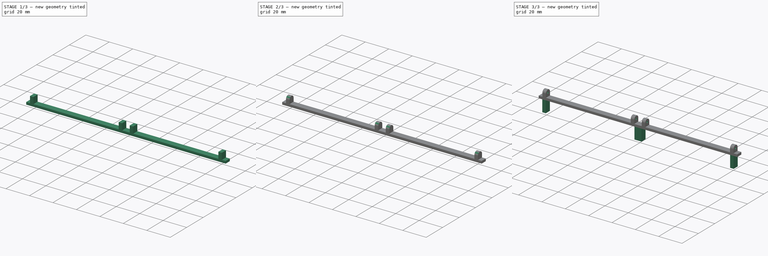
[diagram: build sequence overview — one tinted view per stage of 3, left to right]
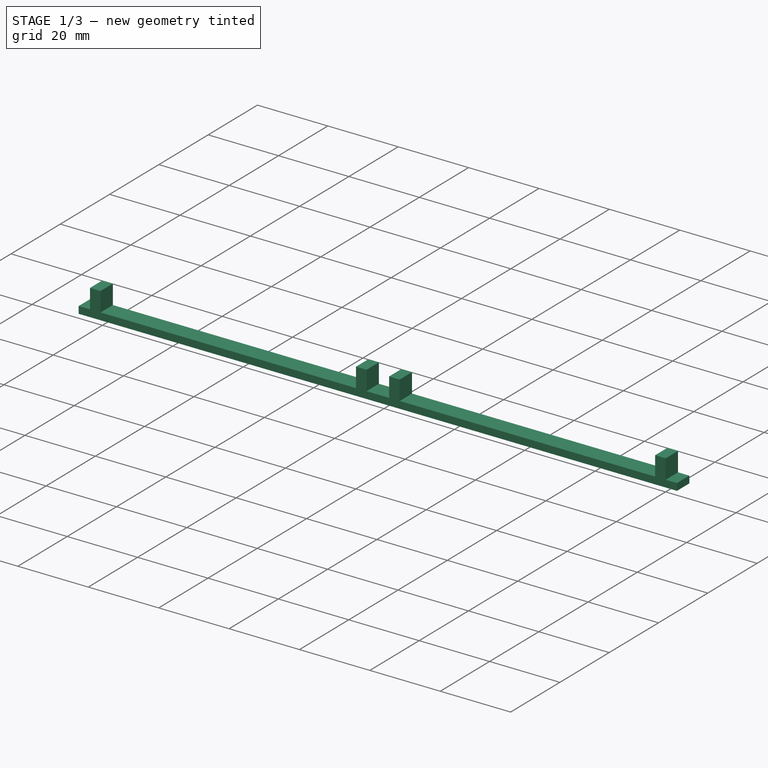
[diagram: stage 1 of 3 — iso view after this stage's code; geometry added in this stage tinted green]
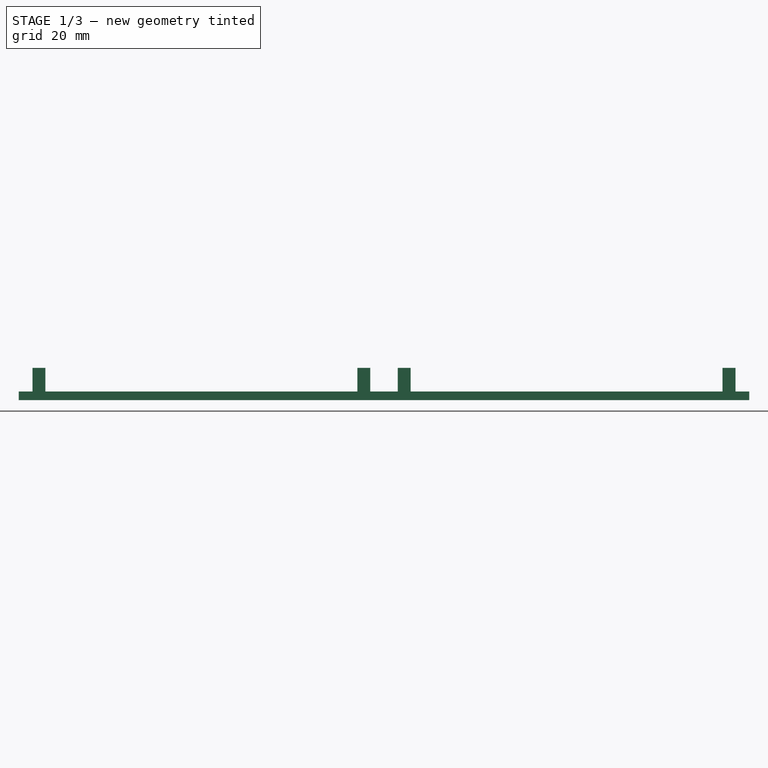
[diagram: stage 1 of 3 — front view after this stage's code; geometry added in this stage tinted green]
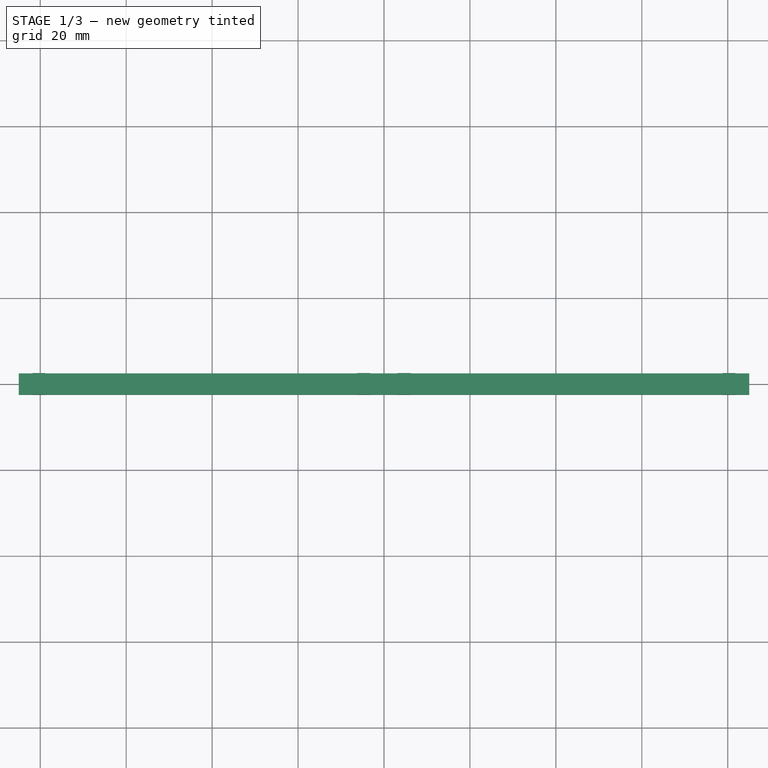
[diagram: stage 1 of 3 — top view after this stage's code; geometry added in this stage tinted green]
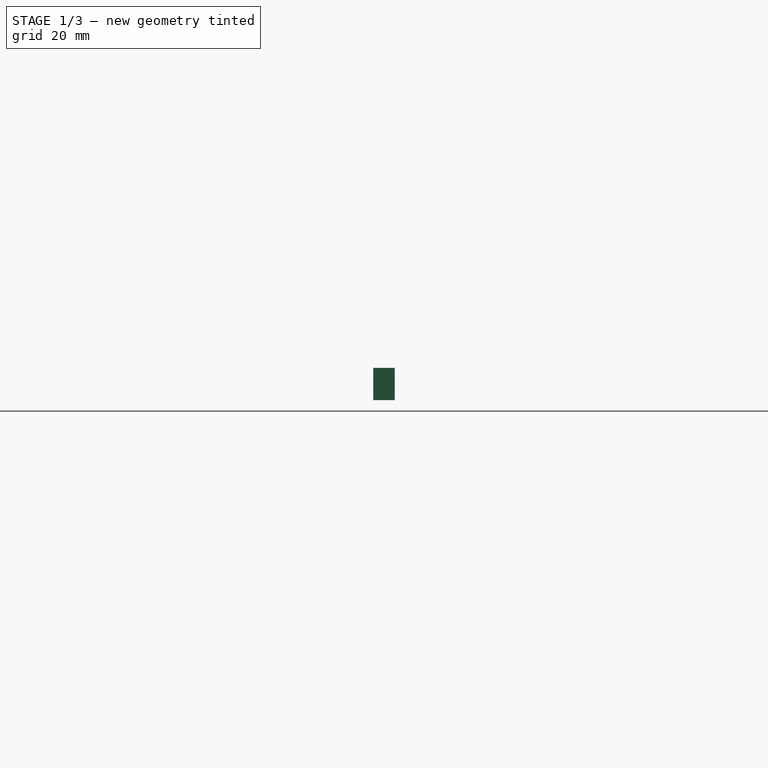
[diagram: stage 1 of 3 — right view after this stage's code; geometry added in this stage tinted green]
FCSTD DOCUMENT  (FreeCAD 0.19R)
Label: attach_aileron_part
License: All rights reserved
LicenseURL: http://en.wikipedia.org/wiki/All_rights_reserved
objects: Sketcher::SketchObject×4, PartDesign::Pad×3, App::DocumentObjectGroup×2, PartDesign::CoordinateSystem×2, App::FeaturePython×1, PartDesign::Fillet×1, PartDesign::Pocket×1, PartDesign::Body×1, App::Part×1
note: 17 computed .brp shape members not serialized (recipe doc carries the construction recipe); baked Part::Feature solids carry a one-line shape summary decoded from their .brp

FEATURE [App::DocumentObjectGroup] Parts
FEATURE [PartDesign::CoordinateSystem] LCS_Origin
  AttacherType = Attacher::AttachEngine3D
  MapMode = 2
  Support = -> [X_Axis]
FEATURE [App::DocumentObjectGroup] Constraints
FEATURE [App::FeaturePython] Variables  # WARN: FeaturePython — macro-defined, semantics opaque (R4)
FEATURE [Sketcher::SketchObject] Sketch
  FullyConstrained = true
  MapMode = 5
  Support = -> [XY_Plane001]
  sketch-geometry (4):
    g0: LineSegment StartX=-85 StartY=2.5 StartZ=0 EndX=85 EndY=2.5 EndZ=0
    g1: LineSegment StartX=85 StartY=2.5 StartZ=0 EndX=85 EndY=-2.5 EndZ=0
    g2: LineSegment StartX=85 StartY=-2.5 StartZ=0 EndX=-85 EndY=-2.5 EndZ=0
    g3: LineSegment StartX=-85 StartY=-2.5 StartZ=0 EndX=-85 EndY=2.5 EndZ=0
  constraints (10):
    c: Coincident(g0,g1)
    c: Coincident(g1,g2)
    c: Coincident(g2,g3)
    c: Coincident(g3,g0)
    c: Horizontal(g2)
    c: Vertical(g3)
    c: DistanceX(g0,g0) = 170
    c: DistanceY(g3,g3) = 5
    c: Symmetric(g0,g0,g-2)
    c: Symmetric(g0,g1,g-1)
FEATURE [PartDesign::Pad] Pad
  Direction = (1,1,1)
  Length = 2
  Length2 = 100
  Profile = -> Sketch
  Type = 0
FEATURE [Sketcher::SketchObject] Sketch001
  FullyConstrained = true
  MapMode = 5
  Placement = pos=(0,0,2) rot=(0,0,1;0rad)
  Support = -> [Pad]
  sketch-geometry (16):
    g0: LineSegment StartX=-81.8 StartY=2.5 StartZ=0 EndX=-78.8 EndY=2.5 EndZ=0
    g1: LineSegment StartX=-78.8 StartY=2.5 StartZ=0 EndX=-78.8 EndY=-2.5 EndZ=0
    g2: LineSegment StartX=-78.8 StartY=-2.5 StartZ=0 EndX=-81.8 EndY=-2.5 EndZ=0
    g3: LineSegment StartX=-81.8 StartY=-2.5 StartZ=0 EndX=-81.8 EndY=2.5 EndZ=0
    g4: LineSegment StartX=78.8 StartY=2.5 StartZ=0 EndX=81.8 EndY=2.5 EndZ=0
    g5: LineSegment StartX=81.8 StartY=2.5 StartZ=0 EndX=81.8 EndY=-2.5 EndZ=0
    g6: LineSegment StartX=81.8 StartY=-2.5 StartZ=0 EndX=78.8 EndY=-2.5 EndZ=0
    g7: LineSegment StartX=78.8 StartY=-2.5 StartZ=0 EndX=78.8 EndY=2.5 EndZ=0
    g8: LineSegment StartX=-6.2 StartY=2.5 StartZ=0 EndX=-3.2 EndY=2.5 EndZ=0
    g9: LineSegment StartX=-3.2 StartY=2.5 StartZ=0 EndX=-3.2 EndY=-2.5 EndZ=0
    g10: LineSegment StartX=-3.2 StartY=-2.5 StartZ=0 EndX=-6.2 EndY=-2.5 EndZ=0
    g11: LineSegment StartX=-6.2 StartY=-2.5 StartZ=0 EndX=-6.2 EndY=2.5 EndZ=0
    g12: LineSegment StartX=3.2 StartY=2.5 StartZ=0 EndX=6.2 EndY=2.5 EndZ=0
    g13: LineSegment StartX=6.2 StartY=2.5 StartZ=0 EndX=6.2 EndY=-2.5 EndZ=0
    g14: LineSegment StartX=6.2 StartY=-2.5 StartZ=0 EndX=3.2 EndY=-2.5 EndZ=0
    g15: LineSegment StartX=3.2 StartY=-2.5 StartZ=0 EndX=3.2 EndY=2.5 EndZ=0
  constraints (44):
    c: Coincident(g0,g1)
    c: Coincident(g1,g2)
    c: Coincident(g2,g3)
    c: Coincident(g3,g0)
    c: Horizontal(g0)
    c: Horizontal(g2)
    c: Vertical(g3)
    c: DistanceY(g3,g3) = 5
    c: DistanceX(g2,g2) = 3
    c: Symmetric(g1,g0,g-1)
    c: DistanceX(g-2,g0) = -81.8
    c: Coincident(g4,g5)
    c: Coincident(g5,g6)
    c: Coincident(g6,g7)
    c: Coincident(g7,g4)
    c: Horizontal(g4)
    c: Horizontal(g6)
    c: Vertical(g5)
    c: DistanceY(g7,g7) = 5
    c: DistanceX(g6,g6) = 3
    c: Symmetric(g6,g4,g-1)
    c: DistanceX(g-2,g4) = 81.8
    c: Coincident(g8,g9)
    c: Coincident(g9,g10)
    c: Coincident(g10,g11)
    c: Coincident(g11,g8)
    c: Horizontal(g8)
    c: Horizontal(g10)
    c: Vertical(g11)
    c: DistanceY(g11,g11) = 5
    c: DistanceX(g10,g10) = 3
    c: Symmetric(g9,g8,g-1)
    c: DistanceX(g-2,g8) = -3.2
    c: Coincident(g12,g13)
    c: Coincident(g13,g14)
    c: Coincident(g14,g15)
    c: Coincident(g15,g12)
    c: Horizontal(g12)
    c: Horizontal(g14)
    c: Vertical(g15)
    c: DistanceY(g15,g15) = 5
    c: DistanceX(g14,g14) = 3
    c: Symmetric(g13,g12,g-1)
    c: DistanceX(g-2,g12) = 3.2
FEATURE [PartDesign::Pad] Pad001
  BaseFeature = -> Pad
  Direction = (1,1,1)
  Length = 5.5
  Length2 = 100
  Profile = -> Sketch001
  Type = 0
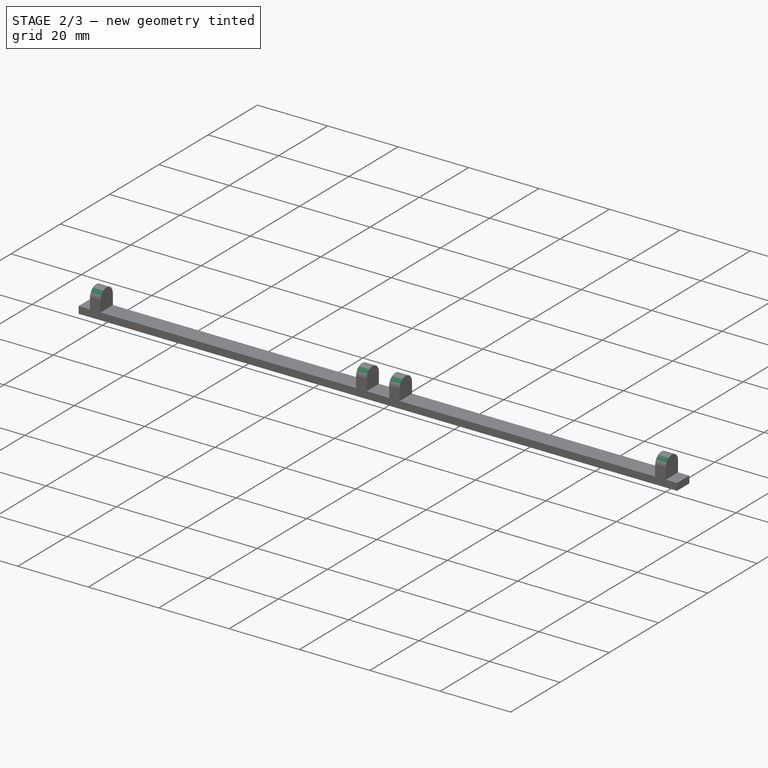
[diagram: stage 2 of 3 — iso view after this stage's code; geometry added in this stage tinted green]
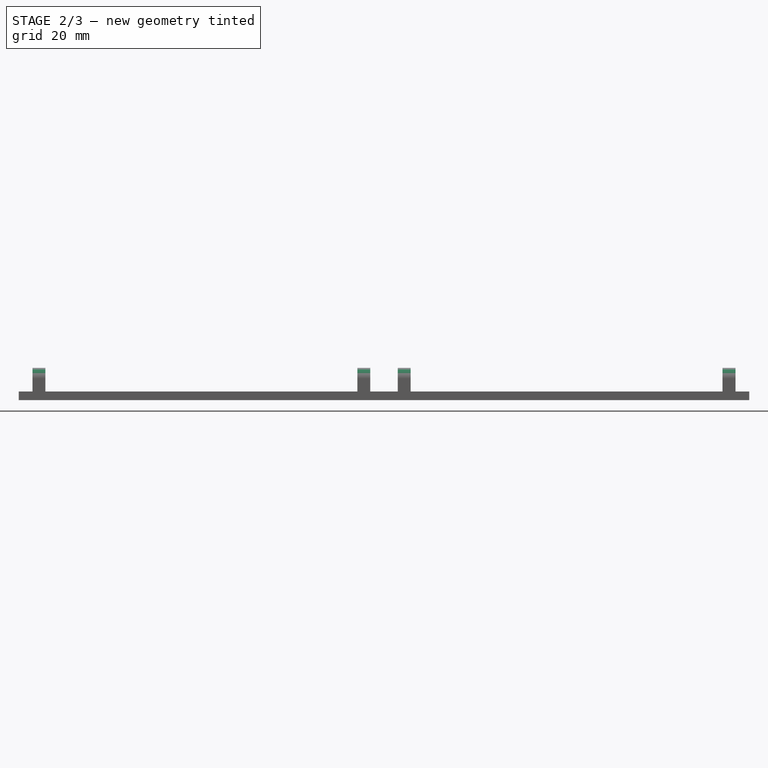
[diagram: stage 2 of 3 — front view after this stage's code; geometry added in this stage tinted green]
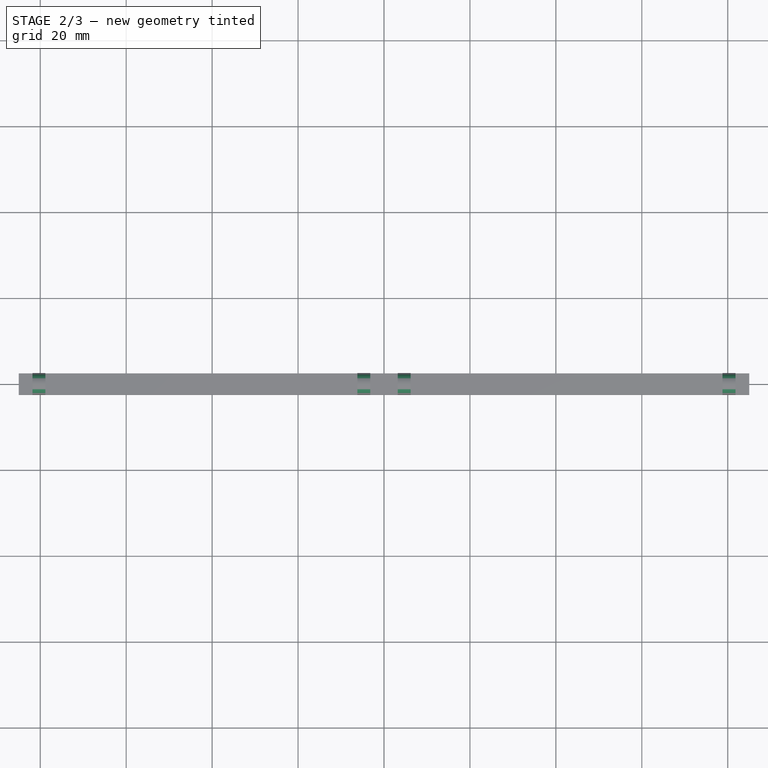
[diagram: stage 2 of 3 — top view after this stage's code; geometry added in this stage tinted green]
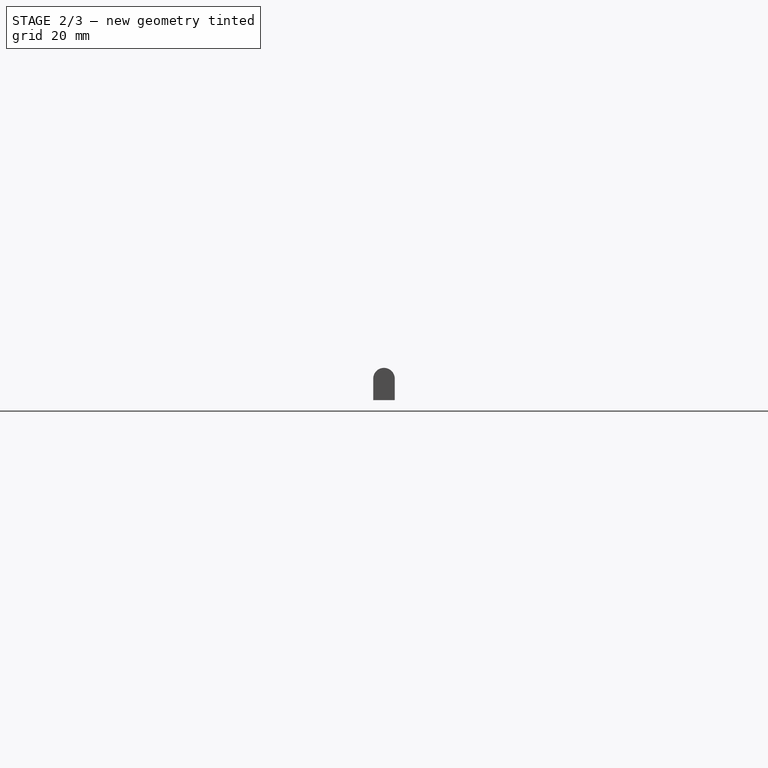
[diagram: stage 2 of 3 — right view after this stage's code; geometry added in this stage tinted green]
FEATURE [PartDesign::Fillet] Fillet
  Base = -> Pad001 [Edge53,Edge58,Edge63,Edge68,Edge42,Edge36,Edge30,Edge24]
  BaseFeature = -> Pad001
  Radius = 2.49
  SupportTransform = false
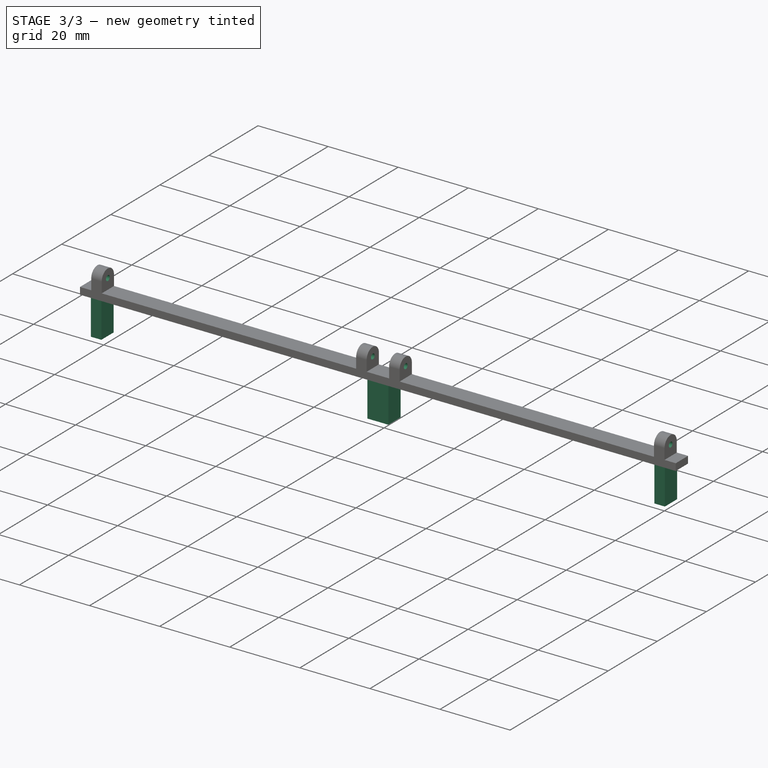
[diagram: stage 3 of 3 — iso view after this stage's code; geometry added in this stage tinted green]
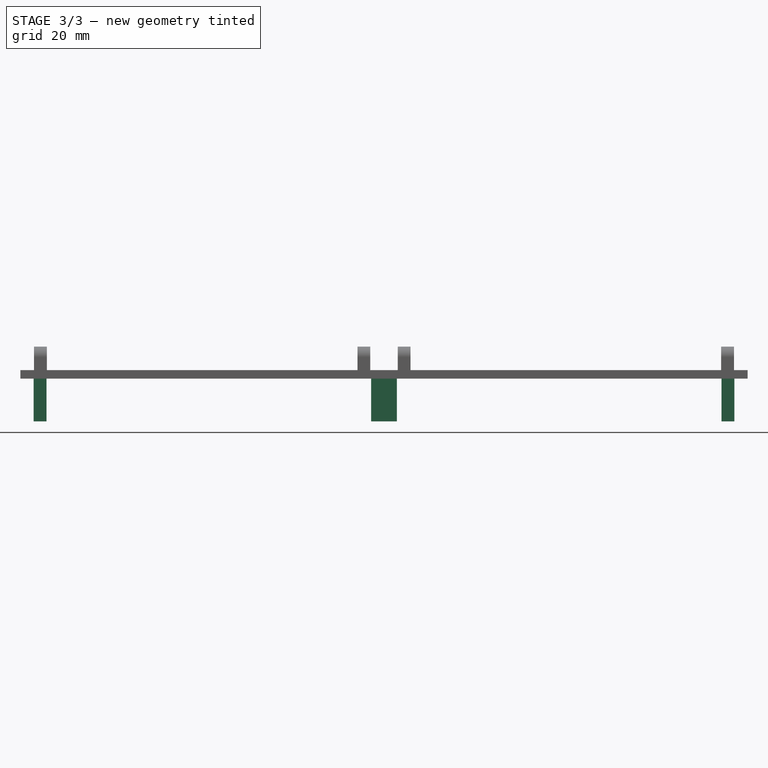
[diagram: stage 3 of 3 — front view after this stage's code; geometry added in this stage tinted green]
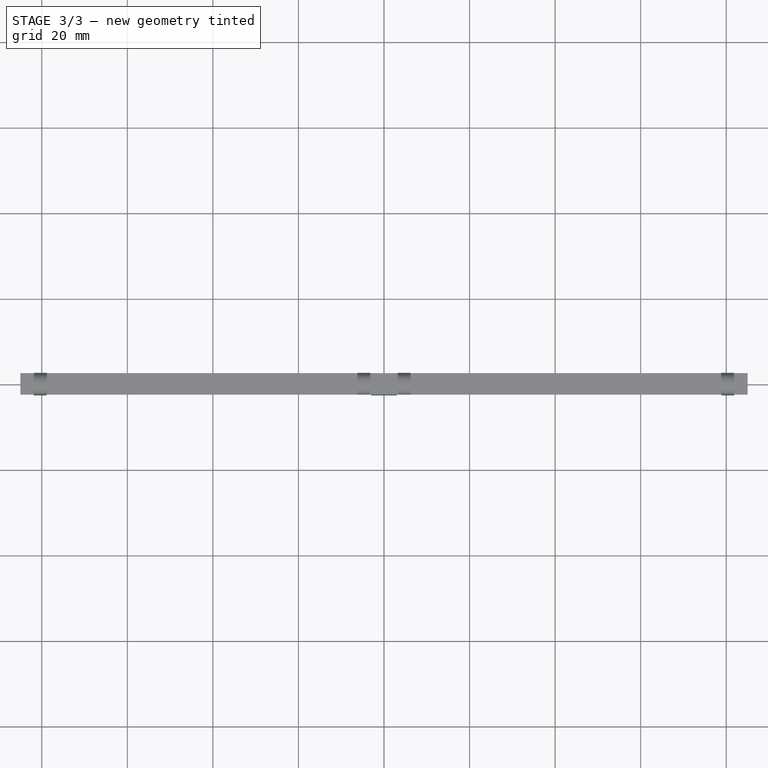
[diagram: stage 3 of 3 — top view after this stage's code; geometry added in this stage tinted green]
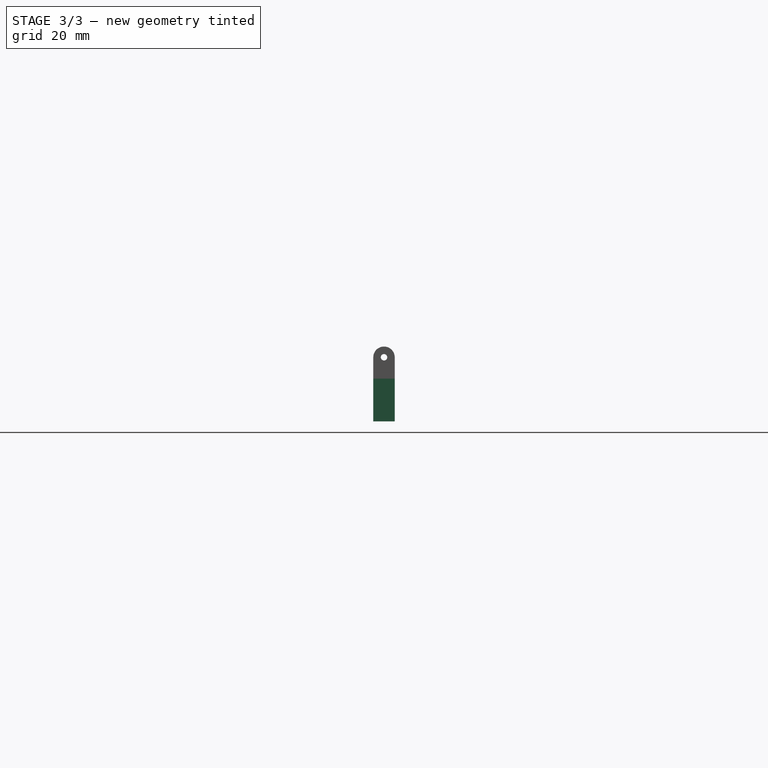
[diagram: stage 3 of 3 — right view after this stage's code; geometry added in this stage tinted green]
FEATURE [Sketcher::SketchObject] Sketch002
  FullyConstrained = false
  MapMode = 5
  Placement = pos=(81.8,0,0) rot=(0.57735,0.57735,0.57735;2.0944rad)
  Support = -> [Fillet]
  sketch-geometry (2):
    g0: LineSegment StartX=-7.13275 StartY=5 StartZ=0 EndX=6.93936 EndY=5 EndZ=0
    g1: Circle CenterX=0 CenterY=5 CenterZ=0 NormalX=0 NormalY=0 NormalZ=1 AngleXU=0 Radius=0.75
  constraints (5):
    c: Horizontal(g0)
    c: DistanceY(g-1,g0) = 5
    c: PointOnObject(g1,g-2)
    c: PointOnObject(g1,g0)
    c: Diameter(g1) = 1.5
FEATURE [PartDesign::Pocket] Pocket
  BaseFeature = -> Fillet
  Length = 200
  Length2 = 100
  Profile = -> Sketch002
  Type = 0
FEATURE [Sketcher::SketchObject] Sketch003
  FullyConstrained = true
  MapMode = 5
  Placement = pos=(0,0,0) rot=(1,0,0;3.14159rad)
  Support = -> [Pocket]
  sketch-geometry (12):
    g0: LineSegment StartX=-81.9 StartY=2.5 StartZ=0 EndX=-78.9 EndY=2.5 EndZ=0
    g1: LineSegment StartX=-78.9 StartY=2.5 StartZ=0 EndX=-78.9 EndY=-2.5 EndZ=0
    g2: LineSegment StartX=-78.9 StartY=-2.5 StartZ=0 EndX=-81.9 EndY=-2.5 EndZ=0
    g3: LineSegment StartX=-81.9 StartY=-2.5 StartZ=0 EndX=-81.9 EndY=2.5 EndZ=0
    g4: LineSegment StartX=-3 StartY=2.5 StartZ=0 EndX=3 EndY=2.5 EndZ=0
    g5: LineSegment StartX=3 StartY=2.5 StartZ=0 EndX=3 EndY=-2.5 EndZ=0
    g6: LineSegment StartX=3 StartY=-2.5 StartZ=0 EndX=-3 EndY=-2.5 EndZ=0
    g7: LineSegment StartX=-3 StartY=-2.5 StartZ=0 EndX=-3 EndY=2.5 EndZ=0
    g8: LineSegment StartX=78.9 StartY=2.5 StartZ=0 EndX=81.9 EndY=2.5 EndZ=0
    g9: LineSegment StartX=81.9 StartY=2.5 StartZ=0 EndX=81.9 EndY=-2.5 EndZ=0
    g10: LineSegment StartX=81.9 StartY=-2.5 StartZ=0 EndX=78.9 EndY=-2.5 EndZ=0
    g11: LineSegment StartX=78.9 StartY=-2.5 StartZ=0 EndX=78.9 EndY=2.5 EndZ=0
  constraints (32):
    c: Coincident(g0,g1)
    c: Coincident(g1,g2)
    c: Coincident(g2,g3)
    c: Coincident(g3,g0)
    c: Horizontal(g0)
    c: Horizontal(g2)
    c: Vertical(g1)
    c: DistanceY(g3,g3) = 5
    c: DistanceX(g2,g2) = 3
    c: Symmetric(g0,g2,g-1)
    c: DistanceX(g-2,g0) = -81.9
    c: Coincident(g4,g5)
    c: Coincident(g5,g6)
    c: Coincident(g6,g7)
    c: Coincident(g7,g4)
    c: Horizontal(g6)
    c: Vertical(g7)
    c: DistanceY(g7,g7) = 5
    c: DistanceX(g6,g6) = 6
    c: Symmetric(g4,g4,g-2)
    c: Symmetric(g5,g4,g-1)
    c: Coincident(g8,g9)
    c: Coincident(g9,g10)
    c: Coincident(g10,g11)
    c: Coincident(g11,g8)
    c: Horizontal(g8)
    c: Horizontal(g10)
    c: Vertical(g11)
    c: DistanceY(g11,g11) = 5
    c: DistanceX(g10,g10) = 3
    c: Symmetric(g9,g8,g-1)
    c: DistanceX(g-2,g8) = 81.9
FEATURE [PartDesign::Pad] Pad002
  BaseFeature = -> Pocket
  Direction = (1,1,1)
  Length = 10
  Length2 = 100
  Profile = -> Sketch003
  Type = 0
FEATURE [PartDesign::Body] Body
  Group = -> [Sketch,Pad,Sketch001,Pad001,Fillet,Sketch002,Pocket,Sketch003,Pad002]
  Origin = -> Origin001
  Tip = -> Pad002
FEATURE [PartDesign::CoordinateSystem] LCS_1
  AttacherType = Attacher::AttachEngine3D
  MapMode = 11
  Placement = pos=(81.8,0,5) rot=(0.707107,0,0.707107;3.14159rad)
  Support = -> [Pad002]
FEATURE [App::Part] Model
  Configuration = 0
  Group = -> [LCS_Origin,Constraints,Variables,Body,LCS_1]
  Origin = -> Origin
  Type = Assembly4 Model
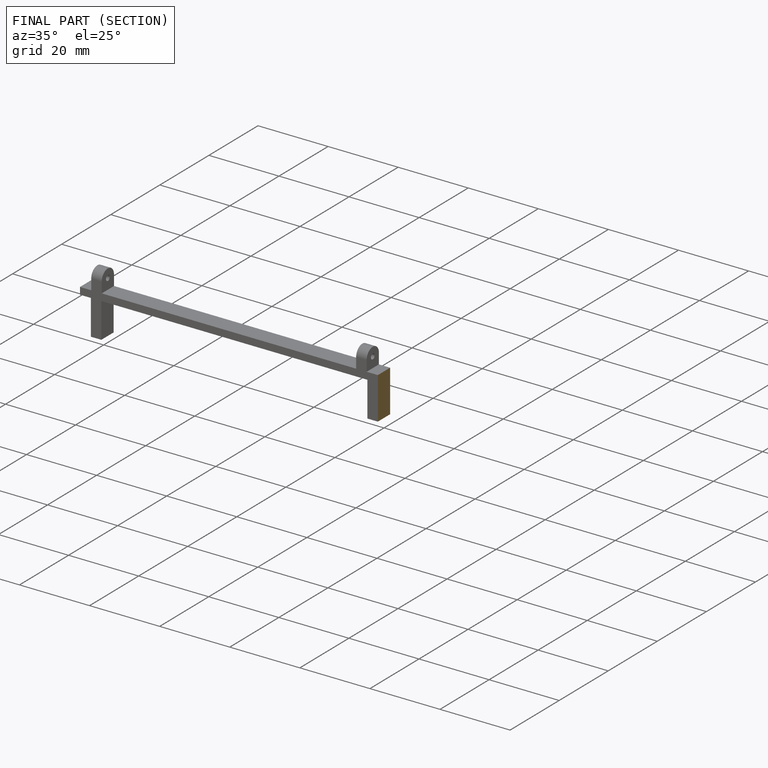
[diagram: finished part — half-section view (interior)]
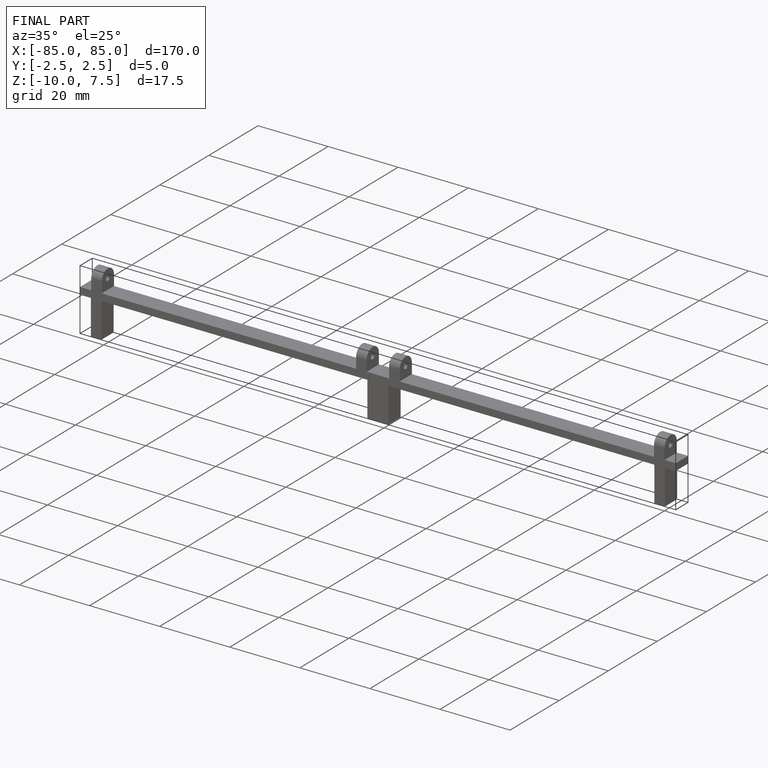
[diagram: finished part — iso view with bounding-box wireframe]
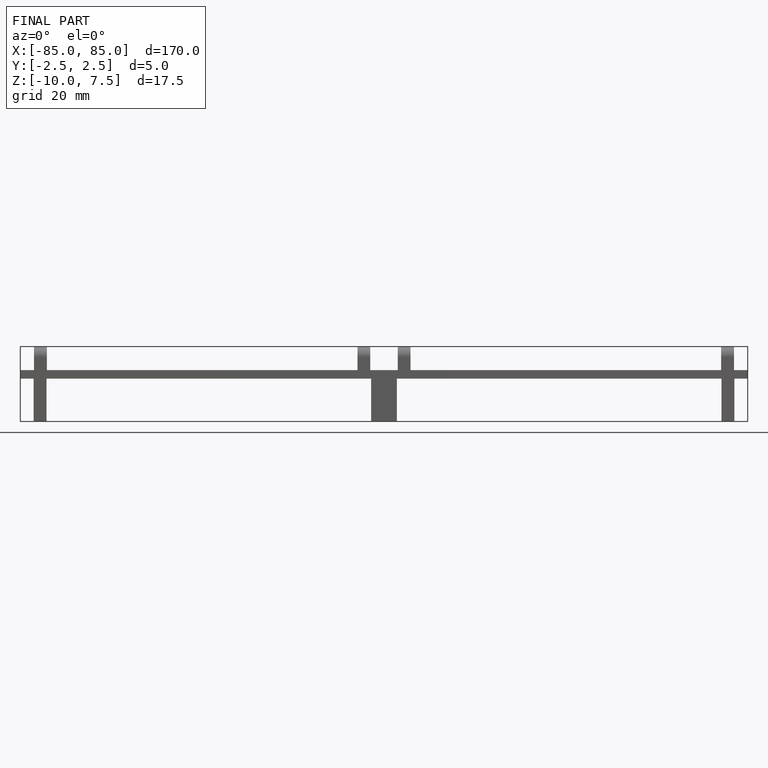
[diagram: finished part — front view with bounding-box wireframe]
